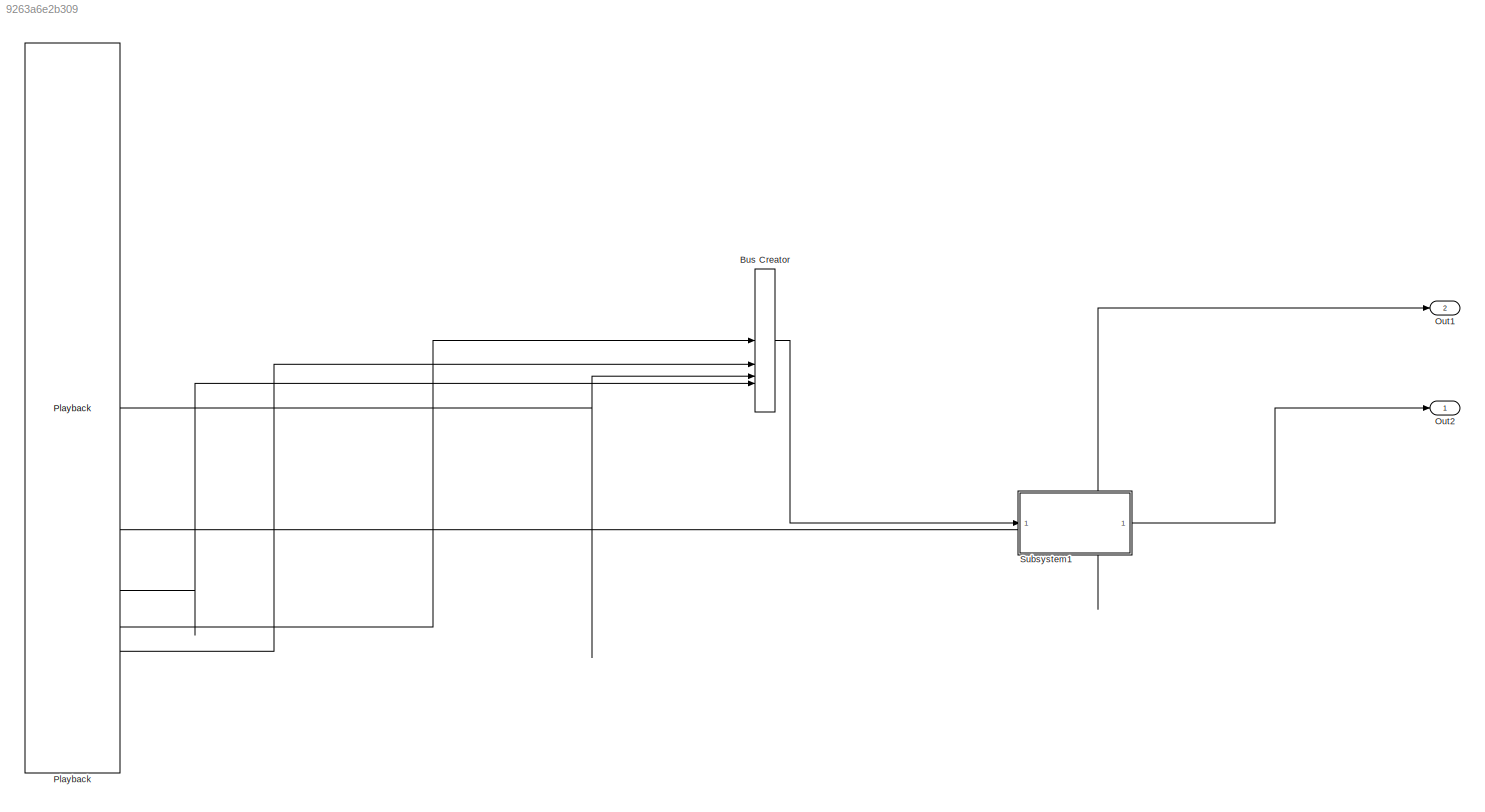
MODEL slx_9263a6e2b309
KIND model
CONFIG AbsTol = auto
CONFIG EnableMultiTasking = off
CONFIG FixedStep = auto
CONFIG MaxStep = auto
CONFIG MinStep = auto
CONFIG RelTol = 1e-3
CONFIG SampleTimeConstraint = Unconstrained
CONFIG SolverName = FixedStepAuto
CONFIG StartTime = 0.0
CONFIG StopTime = 5000
BLOCK [BusCreator] Bus Creator
  DisplayOption = bar
  InheritFromInputs = on
  Inputs = 4
BLOCK [Outport] Out1
  Port = 2
BLOCK [Outport] Out2
  EnsureOutportIsVirtual = on
BLOCK [Playback] Playback
  NumPorts = 6
  PartName = b5579956-5d05-46cb-96b4-8c90d5937c62
  TablePosition = Bottom
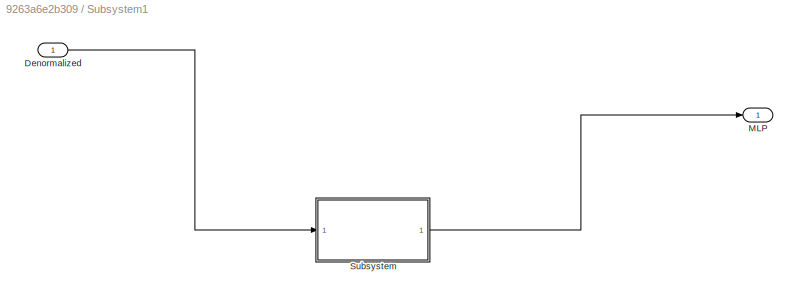
BLOCK [SubSystem] Subsystem1
  TreatAsAtomicUnit = on
BLOCK [Inport] Subsystem1/Denormalized
BLOCK [Outport] Subsystem1/MLP
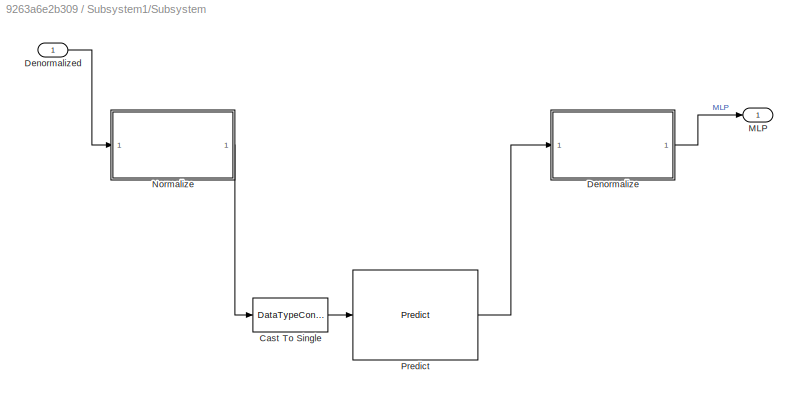
BLOCK [SubSystem] Subsystem1/Subsystem
BLOCK [DataTypeConversion] Subsystem1/Subsystem/Cast To Single
  OutDataTypeStr = single
  RndMeth = Floor
  SaturateOnIntegerOverflow = off
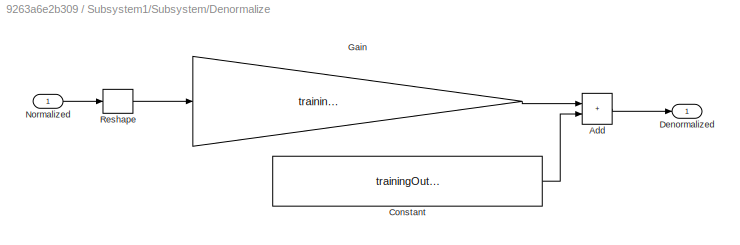
BLOCK [SubSystem] Subsystem1/Subsystem/Denormalize
BLOCK [Sum] Subsystem1/Subsystem/Denormalize/Add
  IconShape = rectangular
BLOCK [Constant] Subsystem1/Subsystem/Denormalize/Constant
  Value = trainingOutputMLP.Normalization.Mu(5)
BLOCK [Outport] Subsystem1/Subsystem/Denormalize/Denormalized
BLOCK [Gain] Subsystem1/Subsystem/Denormalize/Gain
  Gain = trainingOutputMLP.Normalization.Sigma(5)
  OutDataTypeStr = single
BLOCK [Inport] Subsystem1/Subsystem/Denormalize/Normalized
BLOCK [Reshape] Subsystem1/Subsystem/Denormalize/Reshape
BLOCK [Inport] Subsystem1/Subsystem/Denormalized
BLOCK [Outport] Subsystem1/Subsystem/MLP
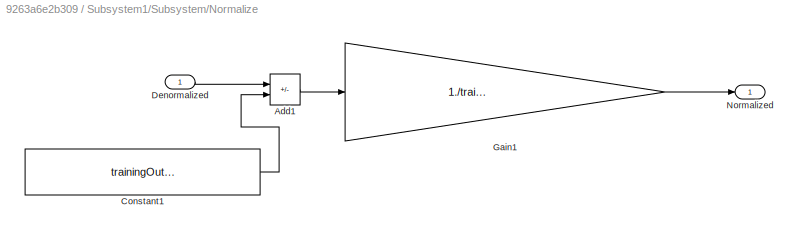
BLOCK [SubSystem] Subsystem1/Subsystem/Normalize
BLOCK [Sum] Subsystem1/Subsystem/Normalize/Add1
  IconShape = rectangular
  Inputs = +-
BLOCK [Constant] Subsystem1/Subsystem/Normalize/Constant1
  Value = trainingOutputMLP.Normalization.Mu(1:4)
BLOCK [Inport] Subsystem1/Subsystem/Normalize/Denormalized
BLOCK [Gain] Subsystem1/Subsystem/Normalize/Gain1
  Gain = 1./trainingOutputMLP.Normalization.Sigma(1:4)
BLOCK [Outport] Subsystem1/Subsystem/Normalize/Normalized
BLOCK [Reference] Subsystem1/Subsystem/Predict  REF=deeplib/Predict
  SourceBlock = deeplib/Predict
  SourceType = Predict
LINE Bus Creator:1 -> Subsystem1:1
LINE Playback:1 -> Bus Creator:3
LINE Playback:2 -> Out1:1
LINE Playback:3 -> Bus Creator:4
LINE Playback:4 -> Bus Creator:1
LINE Playback:5 -> Bus Creator:2
LINE Subsystem1/Denormalized:1 -> Subsystem1/Subsystem:1
LINE Subsystem1/Subsystem/Cast To Single:1 -> Subsystem1/Subsystem/Predict:1
LINE Subsystem1/Subsystem/Denormalize/Add:1 -> Subsystem1/Subsystem/Denormalize/Denormalized:1
LINE Subsystem1/Subsystem/Denormalize/Constant:1 -> Subsystem1/Subsystem/Denormalize/Add:2
LINE Subsystem1/Subsystem/Denormalize/Gain:1 -> Subsystem1/Subsystem/Denormalize/Add:1
LINE Subsystem1/Subsystem/Denormalize/Normalized:1 -> Subsystem1/Subsystem/Denormalize/Reshape:1
LINE Subsystem1/Subsystem/Denormalize/Reshape:1 -> Subsystem1/Subsystem/Denormalize/Gain:1
LINE Subsystem1/Subsystem/Denormalize:1 -> Subsystem1/Subsystem/MLP:1
LINE Subsystem1/Subsystem/Denormalized:1 -> Subsystem1/Subsystem/Normalize:1
LINE Subsystem1/Subsystem/Normalize/Add1:1 -> Subsystem1/Subsystem/Normalize/Gain1:1
LINE Subsystem1/Subsystem/Normalize/Constant1:1 -> Subsystem1/Subsystem/Normalize/Add1:2
LINE Subsystem1/Subsystem/Normalize/Denormalized:1 -> Subsystem1/Subsystem/Normalize/Add1:1
LINE Subsystem1/Subsystem/Normalize/Gain1:1 -> Subsystem1/Subsystem/Normalize/Normalized:1
LINE Subsystem1/Subsystem/Normalize:1 -> Subsystem1/Subsystem/Cast To Single:1
LINE Subsystem1/Subsystem/Predict:1 -> Subsystem1/Subsystem/Denormalize:1
LINE Subsystem1/Subsystem:1 -> Subsystem1/MLP:1
LINE Subsystem1:1 -> Out2:1
